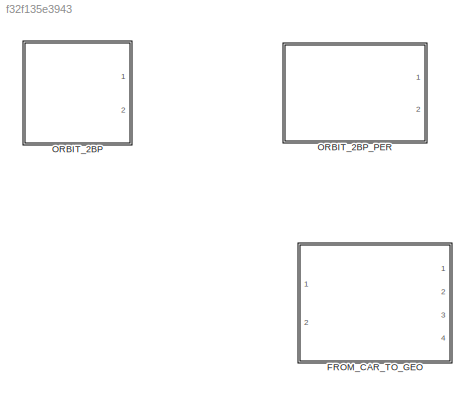
MODEL slx_f32f135e3943
KIND library
CONFIG AbsTol = auto
CONFIG EnableMultiTasking = off
CONFIG FixedStep = auto
CONFIG MaxStep = auto
CONFIG MinStep = auto
CONFIG RelTol = 1e-3
CONFIG SampleTimeConstraint = Unconstrained
CONFIG SolverName = VariableStepAuto
CONFIG StartTime = 0.0
CONFIG StopTime = 10.0
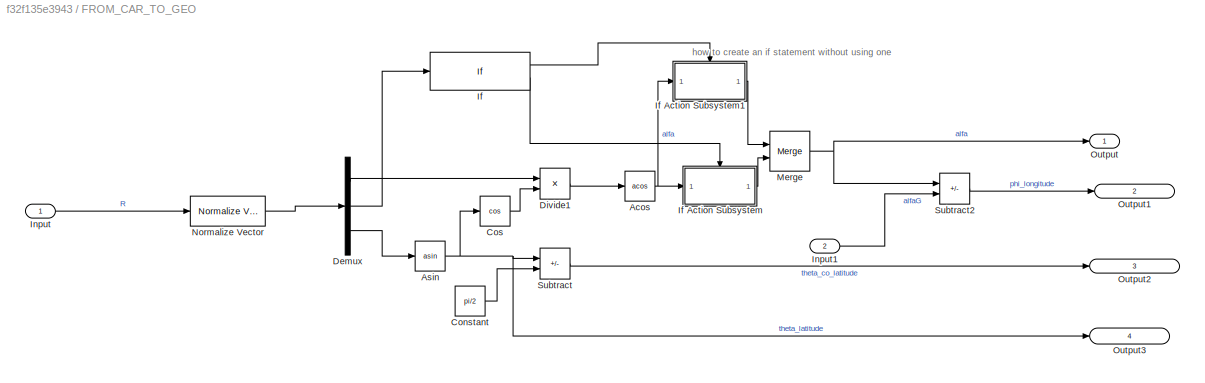
BLOCK [SubSystem] FROM_CAR_TO_GEO
  Ports = [2, 4]
  RequestExecContextInheritance = off
BLOCK [Trigonometry] FROM_CAR_TO_GEO/Acos
  Operator = acos
  Ports = [1, 1]
BLOCK [Trigonometry] FROM_CAR_TO_GEO/Asin
  Operator = asin
  Ports = [1, 1]
BLOCK [Constant] FROM_CAR_TO_GEO/Constant
  Value = pi/2
BLOCK [Trigonometry] FROM_CAR_TO_GEO/Cos
  Operator = cos
  Ports = [1, 1]
BLOCK [Demux] FROM_CAR_TO_GEO/Demux
  Outputs = 3
  Ports = [1, 3]
BLOCK [Product] FROM_CAR_TO_GEO/Divide1
  Inputs = */
  Ports = [2, 1]
BLOCK [If] FROM_CAR_TO_GEO/If
  IfExpression = u1 < 0
  Ports = [1, 2]
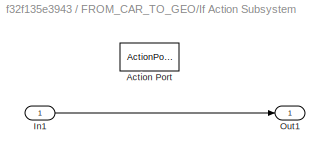
BLOCK [SubSystem] FROM_CAR_TO_GEO/If Action Subsystem
  Ports = [1, 1, 0, 0, 0, 0, 0, 1]
  RequestExecContextInheritance = off
  TreatAsAtomicUnit = on
BLOCK [ActionPort] FROM_CAR_TO_GEO/If Action Subsystem/Action Port
  ActionPortLabel = else
BLOCK [Inport] FROM_CAR_TO_GEO/If Action Subsystem/In1
BLOCK [Outport] FROM_CAR_TO_GEO/If Action Subsystem/Out1
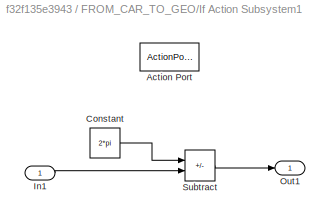
BLOCK [SubSystem] FROM_CAR_TO_GEO/If Action Subsystem1
  Ports = [1, 1, 0, 0, 0, 0, 0, 1]
  RequestExecContextInheritance = off
  TreatAsAtomicUnit = on
BLOCK [ActionPort] FROM_CAR_TO_GEO/If Action Subsystem1/Action Port
  ActionPortLabel = if(u1 < 0)
BLOCK [Constant] FROM_CAR_TO_GEO/If Action Subsystem1/Constant
  Value = 2*pi
BLOCK [Inport] FROM_CAR_TO_GEO/If Action Subsystem1/In1
BLOCK [Outport] FROM_CAR_TO_GEO/If Action Subsystem1/Out1
BLOCK [Sum] FROM_CAR_TO_GEO/If Action Subsystem1/Subtract
  IconShape = rectangular
  Inputs = +-
  Ports = [2, 1]
BLOCK [Inport] FROM_CAR_TO_GEO/Input
  IconDisplay = Signal name
BLOCK [Inport] FROM_CAR_TO_GEO/Input1
  IconDisplay = Signal name
  Port = 2
BLOCK [Merge] FROM_CAR_TO_GEO/Merge
  Ports = [2, 1]
BLOCK [Reference] FROM_CAR_TO_GEO/Normalize Vector  REF=vrlib/Utilities/Normalize Vector
  Ports = [1, 1]
  SourceBlock = vrlib/Utilities/Normalize Vector
  SourceProductBaseCode = SL
  SourceType = Normalize Vector
BLOCK [Outport] FROM_CAR_TO_GEO/Output
  IconDisplay = Signal name
BLOCK [Outport] FROM_CAR_TO_GEO/Output1
  IconDisplay = Signal name
  Port = 2
BLOCK [Outport] FROM_CAR_TO_GEO/Output2
  IconDisplay = Signal name
  Port = 3
BLOCK [Outport] FROM_CAR_TO_GEO/Output3
  IconDisplay = Signal name
  Port = 4
BLOCK [Sum] FROM_CAR_TO_GEO/Subtract
  IconShape = rectangular
  Inputs = -+
  Ports = [2, 1]
BLOCK [Sum] FROM_CAR_TO_GEO/Subtract2
  IconShape = rectangular
  Inputs = +-
  Ports = [2, 1]
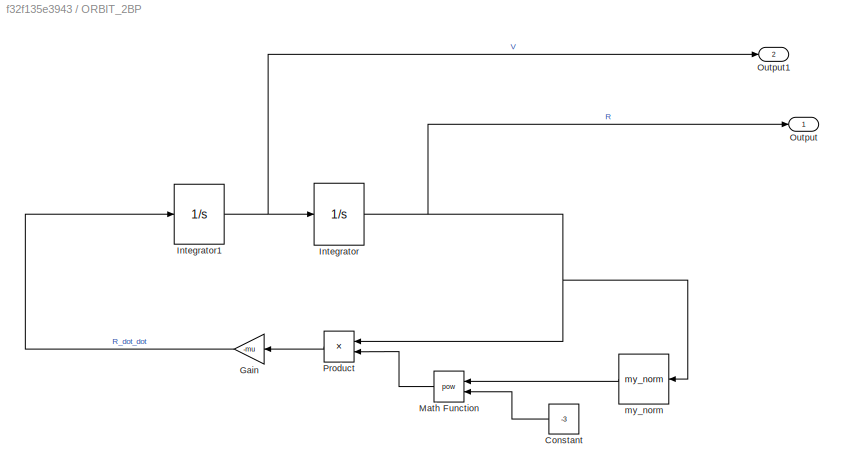
BLOCK [SubSystem] ORBIT_2BP
  Ports = [0, 2]
  RequestExecContextInheritance = off
BLOCK [Constant] ORBIT_2BP/Constant
  Value = -3
BLOCK [Gain] ORBIT_2BP/Gain
  Gain = -mu
BLOCK [Integrator] ORBIT_2BP/Integrator
  InitialCondition = R0
  Ports = [1, 1]
BLOCK [Integrator] ORBIT_2BP/Integrator1
  InitialCondition = V0
  Ports = [1, 1]
BLOCK [Math] ORBIT_2BP/Math Function
  Operator = pow
  Ports = [2, 1]
BLOCK [Outport] ORBIT_2BP/Output
  IconDisplay = Signal name
BLOCK [Outport] ORBIT_2BP/Output1
  IconDisplay = Signal name
  Port = 2
BLOCK [Product] ORBIT_2BP/Product
  Ports = [2, 1]
BLOCK [Reference] ORBIT_2BP/my_norm  REF=my_math_ops/my_norm  (lib defined in slx_67cfba16120e)
  Ports = [1, 1]
  SourceBlock = my_math_ops/my_norm
  SourceType = SubSystem
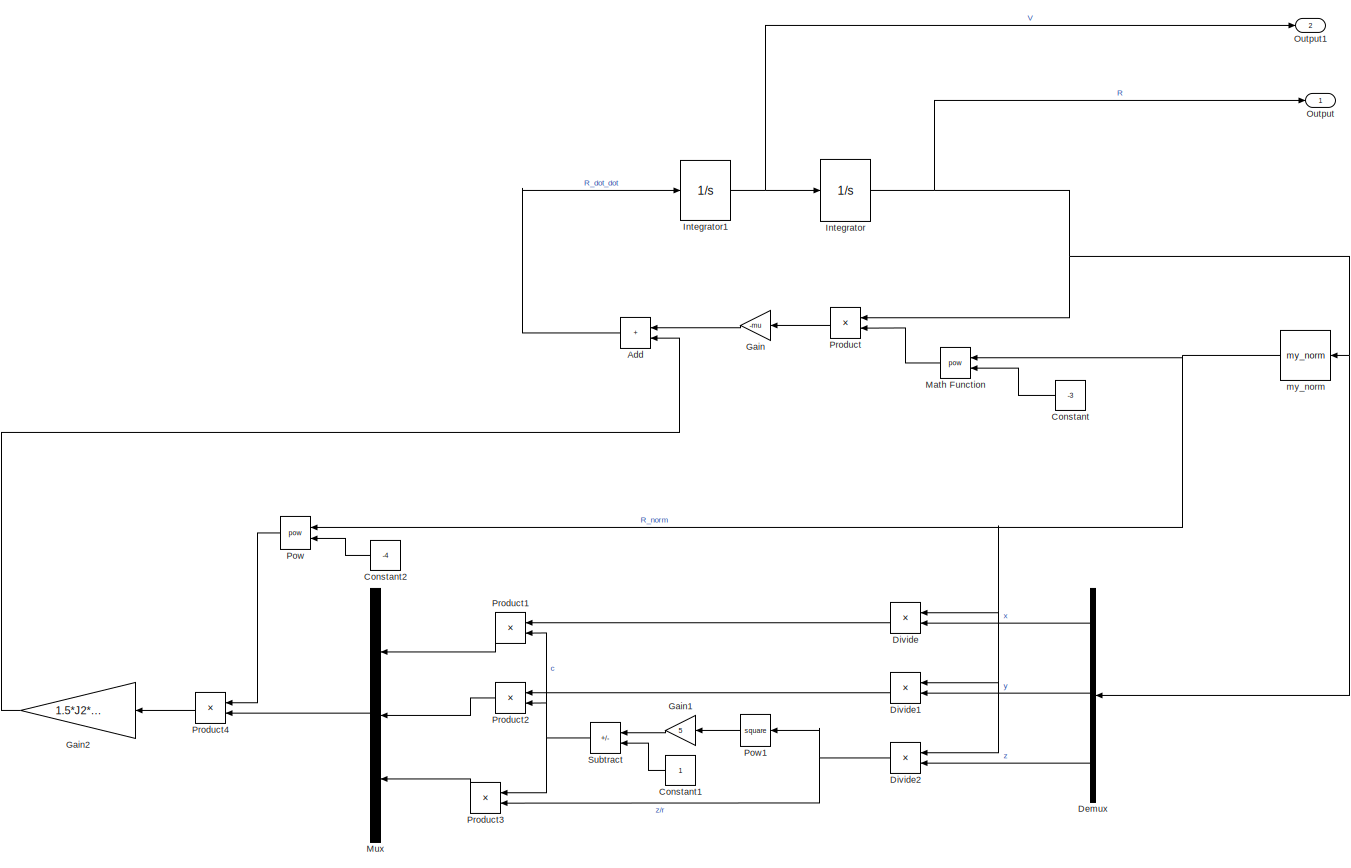
[diagram: ORBIT_2BP_PER - part 1/1, most of the canvas]
BLOCK [SubSystem] ORBIT_2BP_PER
  Ports = [0, 2]
  RequestExecContextInheritance = off
BLOCK [Sum] ORBIT_2BP_PER/Add
  IconShape = rectangular
  Ports = [2, 1]
BLOCK [Constant] ORBIT_2BP_PER/Constant
  Value = -3
BLOCK [Constant] ORBIT_2BP_PER/Constant1
BLOCK [Constant] ORBIT_2BP_PER/Constant2
  Value = -4
BLOCK [Demux] ORBIT_2BP_PER/Demux
  Outputs = 3
  Ports = [1, 3]
BLOCK [Product] ORBIT_2BP_PER/Divide
  Inputs = /*
  Ports = [2, 1]
BLOCK [Product] ORBIT_2BP_PER/Divide1
  Inputs = /*
  Ports = [2, 1]
BLOCK [Product] ORBIT_2BP_PER/Divide2
  Inputs = /*
  Ports = [2, 1]
BLOCK [Gain] ORBIT_2BP_PER/Gain
  Gain = -mu
BLOCK [Gain] ORBIT_2BP_PER/Gain1
  Gain = 5
BLOCK [Gain] ORBIT_2BP_PER/Gain2
  Gain = 1.5*J2*mu*Re^2
BLOCK [Integrator] ORBIT_2BP_PER/Integrator
  InitialCondition = R0
  Ports = [1, 1]
BLOCK [Integrator] ORBIT_2BP_PER/Integrator1
  Ports = [1, 1]
BLOCK [Math] ORBIT_2BP_PER/Math Function
  Operator = pow
  Ports = [2, 1]
BLOCK [Mux] ORBIT_2BP_PER/Mux
  DisplayOption = bar
  Inputs = 3
  Ports = [3, 1]
BLOCK [Outport] ORBIT_2BP_PER/Output
  IconDisplay = Signal name
BLOCK [Outport] ORBIT_2BP_PER/Output1
  IconDisplay = Signal name
  Port = 2
BLOCK [Math] ORBIT_2BP_PER/Pow
  Operator = pow
  Ports = [2, 1]
  RndMeth = Zero
BLOCK [Math] ORBIT_2BP_PER/Pow1
  Operator = square
  Ports = [1, 1]
  RndMeth = Zero
  SignedPower = on
BLOCK [Product] ORBIT_2BP_PER/Product
  Ports = [2, 1]
BLOCK [Product] ORBIT_2BP_PER/Product1
  Ports = [2, 1]
BLOCK [Product] ORBIT_2BP_PER/Product2
  Ports = [2, 1]
BLOCK [Product] ORBIT_2BP_PER/Product3
  Ports = [2, 1]
BLOCK [Product] ORBIT_2BP_PER/Product4
  Ports = [2, 1]
BLOCK [Sum] ORBIT_2BP_PER/Subtract
  IconShape = rectangular
  Inputs = +-
  Ports = [2, 1]
BLOCK [Reference] ORBIT_2BP_PER/my_norm  REF=my_math_ops/my_norm  (lib defined in slx_67cfba16120e)
  Ports = [1, 1]
  SourceBlock = my_math_ops/my_norm
  SourceType = SubSystem
ANNOTATION FROM_CAR_TO_GEO: how to create an if statement without using one
NET FROM_CAR_TO_GEO/Acos:1 -> FROM_CAR_TO_GEO/If Action Subsystem1:1, FROM_CAR_TO_GEO/If Action Subsystem:1
NET FROM_CAR_TO_GEO/Asin:1 -> FROM_CAR_TO_GEO/Cos:1, FROM_CAR_TO_GEO/Output3:1, FROM_CAR_TO_GEO/Subtract:1
LINE FROM_CAR_TO_GEO/Constant:1 -> FROM_CAR_TO_GEO/Subtract:2
LINE FROM_CAR_TO_GEO/Cos:1 -> FROM_CAR_TO_GEO/Divide1:2
LINE FROM_CAR_TO_GEO/Demux:1 -> FROM_CAR_TO_GEO/Divide1:1
LINE FROM_CAR_TO_GEO/Demux:2 -> FROM_CAR_TO_GEO/If:1
LINE FROM_CAR_TO_GEO/Demux:3 -> FROM_CAR_TO_GEO/Asin:1
LINE FROM_CAR_TO_GEO/Divide1:1 -> FROM_CAR_TO_GEO/Acos:1
LINE FROM_CAR_TO_GEO/If Action Subsystem/In1:1 -> FROM_CAR_TO_GEO/If Action Subsystem/Out1:1
LINE FROM_CAR_TO_GEO/If Action Subsystem1/Constant:1 -> FROM_CAR_TO_GEO/If Action Subsystem1/Subtract:1
LINE FROM_CAR_TO_GEO/If Action Subsystem1/In1:1 -> FROM_CAR_TO_GEO/If Action Subsystem1/Subtract:2
LINE FROM_CAR_TO_GEO/If Action Subsystem1/Subtract:1 -> FROM_CAR_TO_GEO/If Action Subsystem1/Out1:1
LINE FROM_CAR_TO_GEO/If Action Subsystem1:1 -> FROM_CAR_TO_GEO/Merge:1
LINE FROM_CAR_TO_GEO/If Action Subsystem:1 -> FROM_CAR_TO_GEO/Merge:2
LINE FROM_CAR_TO_GEO/If:1 -> FROM_CAR_TO_GEO/If Action Subsystem1:ifaction
LINE FROM_CAR_TO_GEO/If:2 -> FROM_CAR_TO_GEO/If Action Subsystem:ifaction
LINE FROM_CAR_TO_GEO/Input1:1 -> FROM_CAR_TO_GEO/Subtract2:2
LINE FROM_CAR_TO_GEO/Input:1 -> FROM_CAR_TO_GEO/Normalize Vector:1
NET FROM_CAR_TO_GEO/Merge:1 -> FROM_CAR_TO_GEO/Output:1, FROM_CAR_TO_GEO/Subtract2:1
LINE FROM_CAR_TO_GEO/Normalize Vector:1 -> FROM_CAR_TO_GEO/Demux:1
LINE FROM_CAR_TO_GEO/Subtract2:1 -> FROM_CAR_TO_GEO/Output1:1
LINE FROM_CAR_TO_GEO/Subtract:1 -> FROM_CAR_TO_GEO/Output2:1
LINE ORBIT_2BP/Constant:1 -> ORBIT_2BP/Math Function:2
LINE ORBIT_2BP/Gain:1 -> ORBIT_2BP/Integrator1:1
NET ORBIT_2BP/Integrator1:1 -> ORBIT_2BP/Integrator:1, ORBIT_2BP/Output1:1
NET ORBIT_2BP/Integrator:1 -> ORBIT_2BP/Output:1, ORBIT_2BP/Product:1, ORBIT_2BP/my_norm:1
LINE ORBIT_2BP/Math Function:1 -> ORBIT_2BP/Product:2
LINE ORBIT_2BP/Product:1 -> ORBIT_2BP/Gain:1
LINE ORBIT_2BP/my_norm:1 -> ORBIT_2BP/Math Function:1
LINE ORBIT_2BP_PER/Add:1 -> ORBIT_2BP_PER/Integrator1:1
LINE ORBIT_2BP_PER/Constant1:1 -> ORBIT_2BP_PER/Subtract:2
LINE ORBIT_2BP_PER/Constant2:1 -> ORBIT_2BP_PER/Pow:2
LINE ORBIT_2BP_PER/Constant:1 -> ORBIT_2BP_PER/Math Function:2
LINE ORBIT_2BP_PER/Demux:1 -> ORBIT_2BP_PER/Divide:2
LINE ORBIT_2BP_PER/Demux:2 -> ORBIT_2BP_PER/Divide1:2
LINE ORBIT_2BP_PER/Demux:3 -> ORBIT_2BP_PER/Divide2:2
LINE ORBIT_2BP_PER/Divide1:1 -> ORBIT_2BP_PER/Product2:1
NET ORBIT_2BP_PER/Divide2:1 -> ORBIT_2BP_PER/Pow1:1, ORBIT_2BP_PER/Product3:2
LINE ORBIT_2BP_PER/Divide:1 -> ORBIT_2BP_PER/Product1:1
LINE ORBIT_2BP_PER/Gain1:1 -> ORBIT_2BP_PER/Subtract:1
LINE ORBIT_2BP_PER/Gain2:1 -> ORBIT_2BP_PER/Add:2
LINE ORBIT_2BP_PER/Gain:1 -> ORBIT_2BP_PER/Add:1
NET ORBIT_2BP_PER/Integrator1:1 -> ORBIT_2BP_PER/Integrator:1, ORBIT_2BP_PER/Output1:1
NET ORBIT_2BP_PER/Integrator:1 -> ORBIT_2BP_PER/Demux:1, ORBIT_2BP_PER/Output:1, ORBIT_2BP_PER/Product:1, ORBIT_2BP_PER/my_norm:1
LINE ORBIT_2BP_PER/Math Function:1 -> ORBIT_2BP_PER/Product:2
LINE ORBIT_2BP_PER/Mux:1 -> ORBIT_2BP_PER/Product4:2
LINE ORBIT_2BP_PER/Pow1:1 -> ORBIT_2BP_PER/Gain1:1
LINE ORBIT_2BP_PER/Pow:1 -> ORBIT_2BP_PER/Product4:1
LINE ORBIT_2BP_PER/Product1:1 -> ORBIT_2BP_PER/Mux:1
LINE ORBIT_2BP_PER/Product2:1 -> ORBIT_2BP_PER/Mux:2
LINE ORBIT_2BP_PER/Product3:1 -> ORBIT_2BP_PER/Mux:3
LINE ORBIT_2BP_PER/Product4:1 -> ORBIT_2BP_PER/Gain2:1
LINE ORBIT_2BP_PER/Product:1 -> ORBIT_2BP_PER/Gain:1
NET ORBIT_2BP_PER/Subtract:1 -> ORBIT_2BP_PER/Product1:2, ORBIT_2BP_PER/Product2:2, ORBIT_2BP_PER/Product3:1
NET ORBIT_2BP_PER/my_norm:1 -> ORBIT_2BP_PER/Divide1:1, ORBIT_2BP_PER/Divide2:1, ORBIT_2BP_PER/Divide:1, ORBIT_2BP_PER/Math Function:1, ORBIT_2BP_PER/Pow:1
note: NET lines group one-source signal fan-out (src -> all destinations, sorted); 1:1 wires keep LINE
